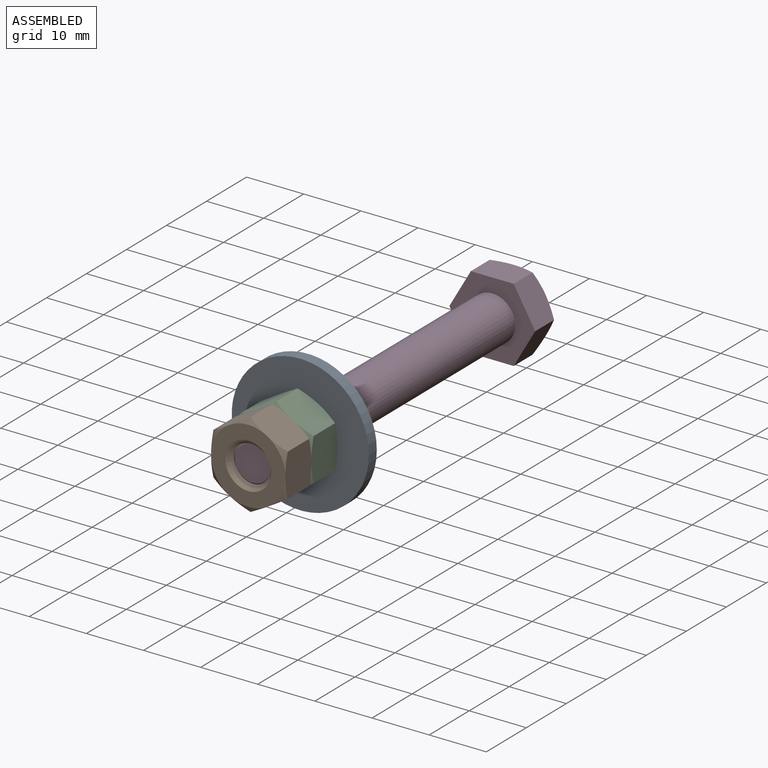
[diagram: assembled view]
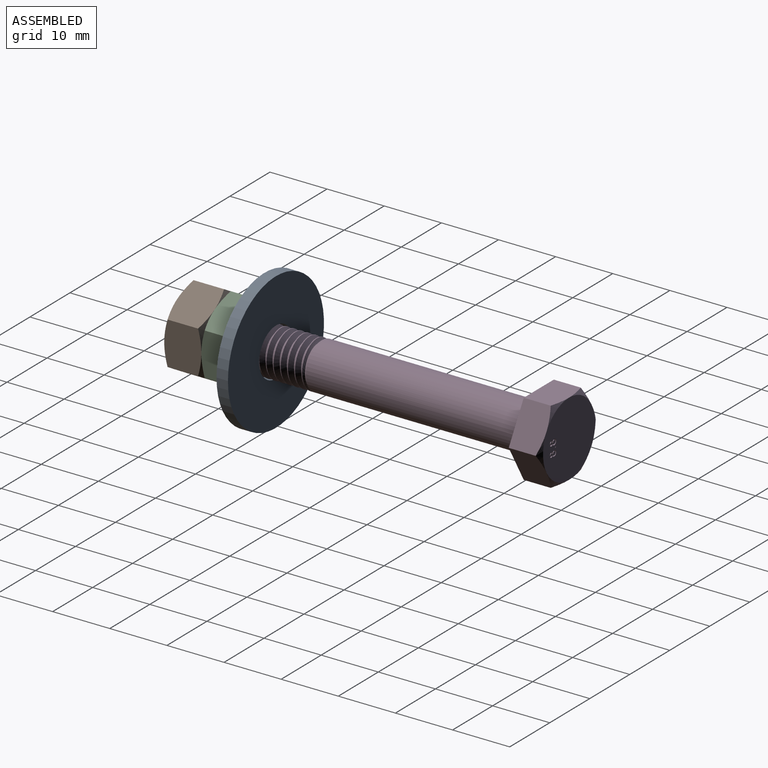
[diagram: assembled view, second angle]
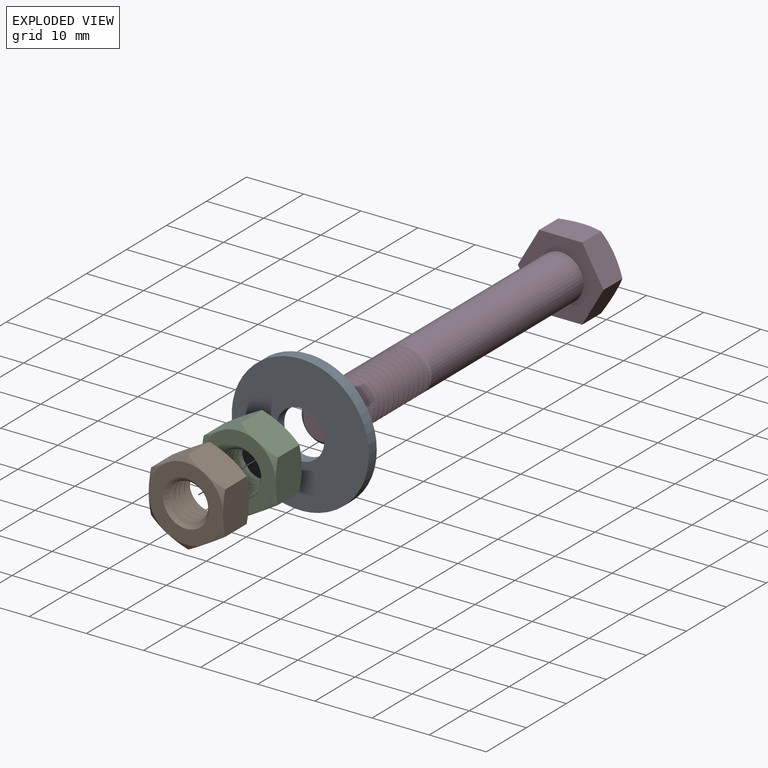
[diagram: exploded view]
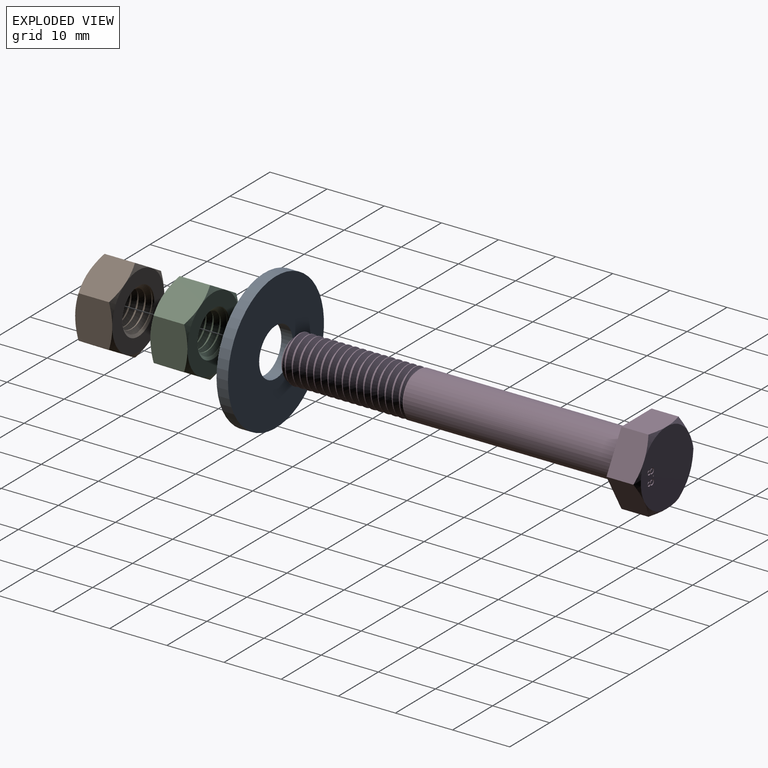
[diagram: exploded view, second angle]
ASSEMBLY  parts=4 mates=3
PART A: 4 faces, bbox 24x24x2 mm
  f0: cylinder r=4.2mm len=8.4mm, axis (0,0,-1), area 52.8mm2, adj f2,f3
  f1: cylinder r=12mm len=24mm, axis (0,0,-1), area 150.8mm2, adj f2,f3
  f2: plane 24x24mm, normal (0,0,1), area 397mm2, adj f0,f1
  f3: plane 24x24mm, normal (0,0,-1), area 397mm2, adj f0,f1
PART B: 27 faces, bbox 15.6x15.6x9.2 mm
  f0: cylinder r=4mm len=8mm, axis (0,0,-1), area 20.5mm2, adj f10,f11,f12,f13,f14
  f1: cylinder r=3.19mm len=6.38mm, axis (0,0,1), area 12.2mm2, adj f2,f3,f13,f14
  f2: cone r=4mm half-angle=45deg, axis (0,0,-1), area 13.3mm2, adj f1,f11,f13,f14
  f3: cone r=4mm half-angle=45deg, axis (0,0,1), area 13.2mm2, adj f1,f10,f12,f13,f14
  f4: plane 7.12x7.12mm, normal (-0.5,0.87,0), area 45.8mm2, adj f5,f9,f18,f19,f22,f23
  f5: plane 8.12x7.12mm, normal (-1,0,0), area 45.8mm2, adj f4,f6,f17,f18,f23,f24
  f6: plane 7.12x7.12mm, normal (-0.5,-0.87,0), area 45.8mm2, adj f5,f7,f16,f17,f24,f25
  f7: plane 7.12x7.12mm, normal (0.5,-0.87,0), area 45.8mm2, adj f6,f8,f15,f16,f25,f26
  f8: plane 8.12x7.12mm, normal (1,0,0), area 45.8mm2, adj f7,f9,f15,f20,f21,f26
  f9: plane 7.12x7.12mm, normal (0.5,0.87,0), area 45.8mm2, adj f4,f8,f19,f20,f21,f22
  f10: plane 13x13mm, normal (0,0,1), area 82.5mm2, adj f0,f3,f15,f16,f17,f18,f19,f20
  f11: plane 13x13mm, normal (0,0,-1), area 82.5mm2, adj f0,f2,f21,f22,f23,f24,f25,f26
  f12: plane 0.09x0.06mm, normal (-1,0,0), area 0mm2, adj f0,f3,f13
  f13: bspline ~8x7.98mm, area 96.9mm2, adj f0,f1,f2,f3,f12
  f14: bspline ~8.22x8mm, area 107.5mm2, adj f0,f1,f2,f3
  f15: cone r=6.5mm half-angle=60deg, axis (0,0,-1), area 4.2mm2, adj f7,f8,f10
  f16: cone r=6.5mm half-angle=60deg, axis (0,0,-1), area 4.2mm2, adj f6,f7,f10
  f17: cone r=6.5mm half-angle=60deg, axis (0,0,-1), area 4.2mm2, adj f5,f6,f10
  f18: cone r=6.5mm half-angle=60deg, axis (0,0,-1), area 4.2mm2, adj f4,f5,f10
  f19: cone r=6.5mm half-angle=60deg, axis (0,0,-1), area 4.2mm2, adj f4,f9,f10
  f20: cone r=6.5mm half-angle=60deg, axis (0,0,-1), area 4.2mm2, adj f8,f9,f10
  f21: cone r=6.5mm half-angle=60deg, axis (0,0,1), area 4.2mm2, adj f8,f9,f11
  f22: cone r=6.5mm half-angle=60deg, axis (0,0,1), area 4.2mm2, adj f4,f9,f11
  f23: cone r=6.5mm half-angle=60deg, axis (0,0,1), area 4.2mm2, adj f4,f5,f11
  f24: cone r=6.5mm half-angle=60deg, axis (0,0,1), area 4.2mm2, adj f5,f6,f11
  f25: cone r=6.5mm half-angle=60deg, axis (0,0,1), area 4.2mm2, adj f6,f7,f11
  f26: cone r=6.5mm half-angle=60deg, axis (0,0,1), area 4.2mm2, adj f7,f8,f11
PART C: same geometry as B
PART D: 82 faces, bbox 66.2x15.6x15.6 mm
  f0: cone r=1000mm half-angle=45deg, axis (-1,0,0), area 13.5mm2, adj f19,f20,f21,f22,f23
  f1: cone r=3.06mm half-angle=45deg, axis (-1,0,0), area 16.1mm2, adj f2,f20,f21,f23,f32
  f2: cylinder r=4mm len=8mm, axis (1,0,0), area 2.2mm2, adj f1,f3,f21,f23
  f3: cylinder r=4mm len=8mm, axis (1,0,0), area 3.9mm2, adj f2,f4,f21,f23
  f4: cylinder r=4mm len=8mm, axis (1,0,0), area 3.9mm2, adj f3,f5,f21,f23
  f5: cylinder r=4mm len=8mm, axis (1,0,0), area 3.9mm2, adj f4,f6,f21,f23
  f6: cylinder r=4mm len=8mm, axis (1,0,0), area 3.9mm2, adj f5,f7,f21,f23
  f7: cylinder r=4mm len=8mm, axis (1,0,0), area 3.9mm2, adj f6,f8,f21,f23
  f8: cylinder r=4mm len=8mm, axis (1,0,0), area 3.9mm2, adj f7,f9,f21,f23
  f9: cylinder r=4mm len=8mm, axis (1,0,0), area 3.9mm2, adj f8,f10,f21,f23
  f10: cylinder r=4mm len=8mm, axis (1,0,0), area 3.9mm2, adj f9,f11,f21,f23
  f11: cylinder r=4mm len=8mm, axis (1,0,0), area 3.9mm2, adj f10,f12,f21,f23
  f12: cylinder r=4mm len=8mm, axis (1,0,0), area 3.9mm2, adj f11,f13,f21,f23
  f13: cylinder r=4mm len=8mm, axis (1,0,0), area 3.9mm2, adj f12,f14,f21,f23
  f14: cylinder r=4mm len=8mm, axis (1,0,0), area 3.9mm2, adj f13,f15,f21,f23
  f15: cylinder r=4mm len=8mm, axis (1,0,0), area 3.9mm2, adj f14,f16,f21,f23
  f16: cylinder r=4mm len=8mm, axis (1,0,0), area 3.9mm2, adj f15,f17,f21,f23
  f17: cylinder r=4mm len=8mm, axis (1,0,0), area 3.9mm2, adj f16,f18,f21,f23
  f18: cylinder r=4mm len=8mm, axis (1,0,0), area 3.9mm2, adj f17,f19,f21,f22,f23
  f19: cylinder r=4mm len=38.44mm, axis (1,0,0), area 956.2mm2, adj f0,f18,f22,f23,f24
  f20: cylinder r=3.19mm len=21.06mm, axis (-1,0,0), area 64.1mm2, adj f0,f1,f21,f23
  f21: bspline ~23x7.99mm, area 371.9mm2, adj f0,f1,f2,f3,f4,f5,f6,f7
  f22: bspline ~8x7.99mm, area 3.7mm2, adj f0,f18,f19
  f23: bspline ~22.81x8mm, area 358.7mm2, adj f0,f1,f2,f3,f4,f5,f6,f7
  f24: plane 15.01x13mm, normal (1,0,0), area 96.1mm2, adj f19,f26,f27,f28,f29,f30,f31
  f25: plane 13x13mm, normal (-1,0,0), area 130.3mm2, adj f33,f34,f35,f36,f37,f38,f39,f40
  f26: plane 8.12x5.92mm, normal (0,0,-1), area 38.3mm2, adj f24,f27,f31,f35,f36
  f27: plane 7.12x5.92mm, normal (0,-0.87,-0.5), area 38.3mm2, adj f24,f26,f28,f34,f35
  f28: plane 7.12x5.92mm, normal (0,-0.87,0.5), area 38.3mm2, adj f24,f27,f29,f33,f34
  f29: plane 8.12x5.92mm, normal (0,0,1), area 38.3mm2, adj f24,f28,f30,f33,f38
  f30: plane 7.12x5.92mm, normal (0,0.87,0.5), area 38.3mm2, adj f24,f29,f31,f37,f38
  f31: plane 7.12x5.92mm, normal (0,0.87,-0.5), area 38.3mm2, adj f24,f26,f30,f36,f37
  f32: plane 6.13x6.13mm, normal (1,0,0), area 29.5mm2, adj f1
  f33: cone r=6.5mm half-angle=60deg, axis (1,0,0), area 4.2mm2, adj f25,f28,f29
  f34: cone r=6.5mm half-angle=60deg, axis (1,0,0), area 4.2mm2, adj f25,f27,f28
  f35: cone r=6.5mm half-angle=60deg, axis (1,0,0), area 4.2mm2, adj f25,f26,f27
  f36: cone r=6.5mm half-angle=60deg, axis (1,0,0), area 4.2mm2, adj f25,f26,f31
  f37: cone r=6.5mm half-angle=60deg, axis (1,0,0), area 4.2mm2, adj f25,f30,f31
  f38: cone r=6.5mm half-angle=60deg, axis (1,0,0), area 4.2mm2, adj f25,f29,f30
  f39: extruded ~0.39x0.29mm, area 0.1mm2, adj f25,f40,f46,f47
  f40: extruded ~0.31x0.25mm, area 0.1mm2, adj f25,f39,f41,f47
  f41: extruded ~0.43x0.39mm, area 0.2mm2, adj f25,f40,f42,f47
  f42: extruded ~0.44x0.39mm, area 0.2mm2, adj f25,f41,f43,f47
  f43: extruded ~0.3x0.25mm, area 0.1mm2, adj f25,f42,f44,f47
  f44: extruded ~0.4x0.29mm, area 0.1mm2, adj f25,f43,f45,f47
  f45: extruded ~0.49x0.47mm, area 0.2mm2, adj f25,f44,f46,f47
  f46: extruded ~0.49x0.47mm, area 0.2mm2, adj f25,f39,f45,f47
  f47: plane 1.56x0.99mm, normal (-1,0,0), area 0.8mm2, adj f39,f40,f41,f42,f43,f44,f45,f46
  f48: extruded ~0.25x0.24mm, area 0.1mm2, adj f47,f49,f51,f56
  f49: extruded ~0.25x0.24mm, area 0.1mm2, adj f47,f48,f50,f56
  f50: extruded ~0.25x0.24mm, area 0.1mm2, adj f47,f49,f51,f56
  f51: extruded ~0.25x0.24mm, area 0.1mm2, adj f47,f48,f50,f56
  f52: extruded ~0.29x0.29mm, area 0.1mm2, adj f47,f53,f55,f57
  f53: extruded ~0.3x0.3mm, area 0.1mm2, adj f47,f52,f54,f57
  f54: extruded ~0.3x0.29mm, area 0.1mm2, adj f47,f53,f55,f57
  f55: extruded ~0.3x0.3mm, area 0.1mm2, adj f47,f52,f54,f57
  f56: plane 0.47x0.43mm, normal (-1,0,0), area 0.2mm2, adj f48,f49,f50,f51
  f57: plane 0.59x0.59mm, normal (-1,0,0), area 0.3mm2, adj f52,f53,f54,f55
  f58: plane 0.25x0.2mm, normal (0,1,0), area 0mm2, adj f25,f59,f61,f62
  f59: plane 0.25x0.2mm, normal (0,0,1), area 0mm2, adj f25,f58,f60,f62
  f60: plane 0.25x0.2mm, normal (0,-1,0), area 0mm2, adj f25,f59,f61,f62
  f61: plane 0.25x0.2mm, normal (0,0,-1), area 0mm2, adj f25,f58,f60,f62
  f62: plane 0.2x0.2mm, normal (-1,0,0), area 0mm2, adj f58,f59,f60,f61
  f63: extruded ~0.39x0.29mm, area 0.1mm2, adj f25,f64,f70,f71
  f64: extruded ~0.31x0.25mm, area 0.1mm2, adj f25,f63,f65,f71
  f65: extruded ~0.43x0.39mm, area 0.2mm2, adj f25,f64,f66,f71
  f66: extruded ~0.44x0.39mm, area 0.2mm2, adj f25,f65,f67,f71
  f67: extruded ~0.3x0.25mm, area 0.1mm2, adj f25,f66,f68,f71
  f68: extruded ~0.4x0.29mm, area 0.1mm2, adj f25,f67,f69,f71
  f69: extruded ~0.49x0.47mm, area 0.2mm2, adj f25,f68,f70,f71
  f70: extruded ~0.49x0.47mm, area 0.2mm2, adj f25,f63,f69,f71
  f71: plane 1.56x0.99mm, normal (-1,0,0), area 0.8mm2, adj f63,f64,f65,f66,f67,f68,f69,f70
  f72: extruded ~0.25x0.24mm, area 0.1mm2, adj f71,f73,f75,f80
  f73: extruded ~0.25x0.24mm, area 0.1mm2, adj f71,f72,f74,f80
  f74: extruded ~0.25x0.24mm, area 0.1mm2, adj f71,f73,f75,f80
  f75: extruded ~0.25x0.24mm, area 0.1mm2, adj f71,f72,f74,f80
  f76: extruded ~0.29x0.29mm, area 0.1mm2, adj f71,f77,f79,f81
  f77: extruded ~0.3x0.3mm, area 0.1mm2, adj f71,f76,f78,f81
  f78: extruded ~0.3x0.29mm, area 0.1mm2, adj f71,f77,f79,f81
  f79: extruded ~0.3x0.3mm, area 0.1mm2, adj f71,f76,f78,f81
  f80: plane 0.47x0.43mm, normal (-1,0,0), area 0.2mm2, adj f72,f73,f74,f75
  f81: plane 0.59x0.59mm, normal (-1,0,0), area 0.3mm2, adj f76,f77,f78,f79
PLACE A rot(axis=(1,0,0),90deg) t=(274.95,-308.15,-59.86)mm
PLACE B rot(axis=(1,0,0),90deg) t=(242.53,-319.9,-91.43)mm
PLACE C rot(axis=(1,0,0),90deg) t=(242.53,-313.4,-91.43)mm
PLACE D rot(axis=(0,0,-1),90deg) t=(242.53,-289.5,-91.43)mm
MATE fastened C.f0 <-> A.f0  axis (0,1,0) through (242.53,-310.15,-91.43)mm
MATE fastened B.f0 <-> C.f0  axis (0,1,0) through (242.53,-316.65,-91.43)mm
MATE fastened A.f0 <-> D.f1  axis (0,1,0) through (242.53,-308.15,-91.43)mm
